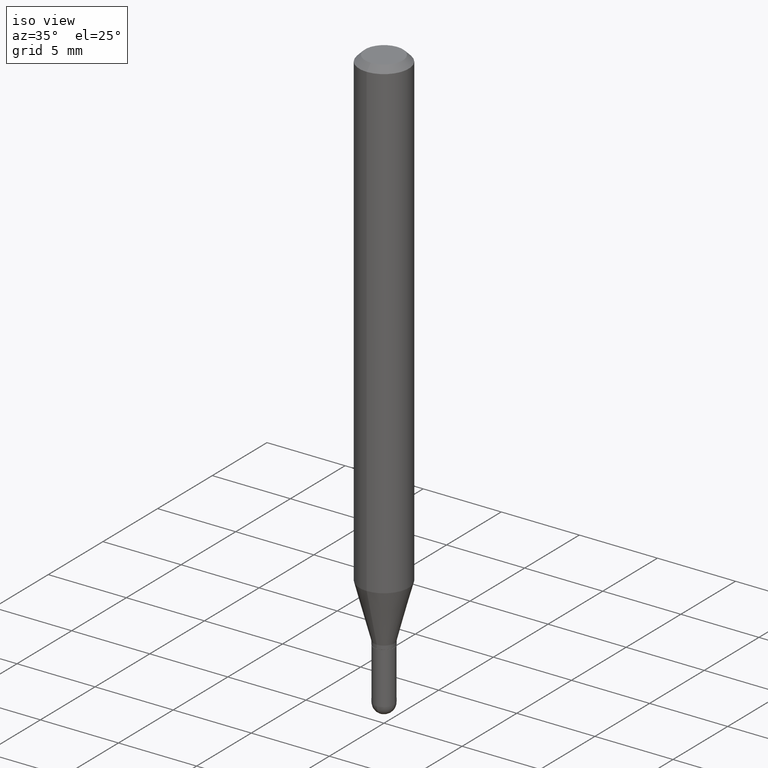
[diagram: clean part render]
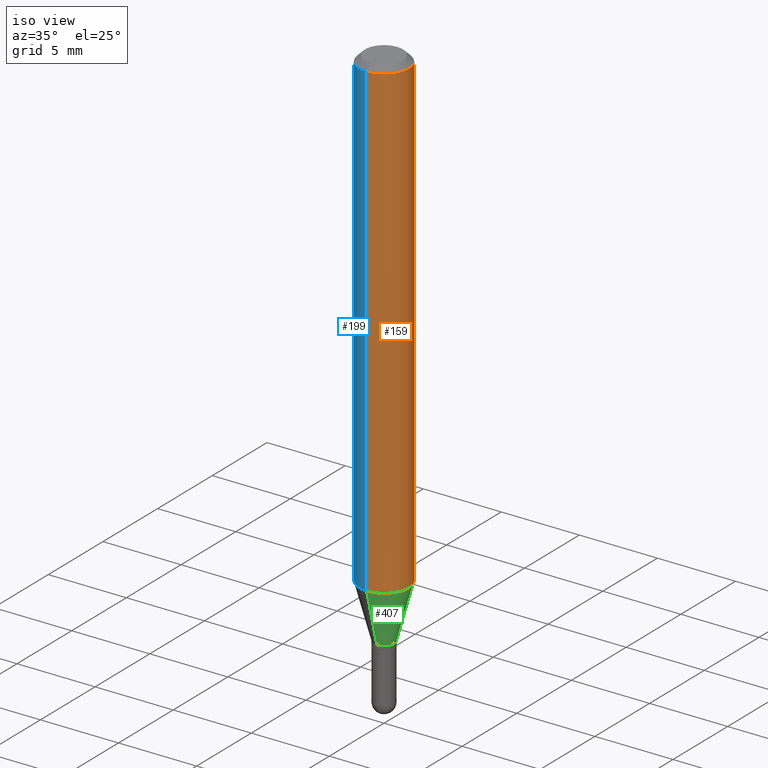
[diagram: same view with three faces highlighted in distinct colors, each labeled with its STEP entity id]
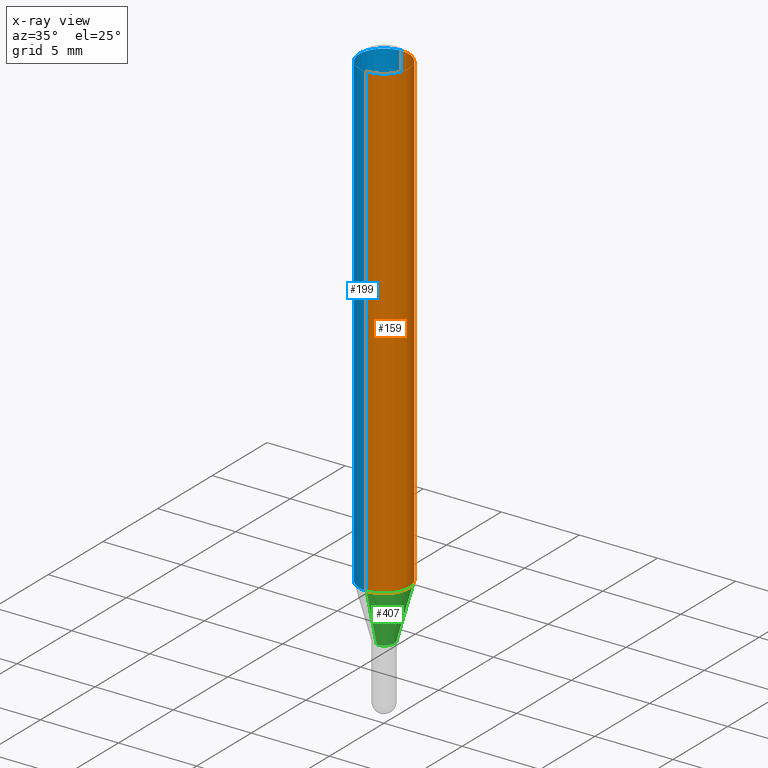
[diagram: x-ray of the same camera — body ghosted, the three highlighted faces saturated]
A machine part, iso view with three faces highlighted in distinct colors.
The next image is the same camera in x-ray (body ghosted, the three faces saturated) — at least one of them is partly hidden behind the body in this view.
Their STEP definitions:

[orange] entity #159 — the highlighted cylindrical surface (edge-blend (fillet) strip) has radius 1.5875 mm, axis along (-0, 0, 1).
#5 = CIRCLE ( 'NONE', #411, 0.06250000000000000000 ) ;
#7 = CARTESIAN_POINT ( 'NONE',  ( 3.668183042626222503E-31, -5.237250888057462898E-17, -0.01500000000000000812 ) ) ;
#26 = CARTESIAN_POINT ( 'NONE',  ( 4.440892098500625669E-16, 0.06250000000000000000, -2.182187870023941539E-16 ) ) ;
#28 = CARTESIAN_POINT ( 'NONE',  ( 4.440892098500920998E-16, 0.06249999999999995143, -0.01500000000000022669 ) ) ;
#38 = VERTEX_POINT ( 'NONE', #330 ) ;
#64 = VECTOR ( 'NONE', #168, 39.37007874015748143 ) ;
#65 = CARTESIAN_POINT ( 'NONE',  ( 0.000000000000000000, 0.000000000000000000, 0.000000000000000000 ) ) ;
#105 = AXIS2_PLACEMENT_3D ( 'NONE', #7, #372, #448 ) ;
#113 = EDGE_CURVE ( 'NONE', #371, #38, #5, .T. ) ;
#128 = VERTEX_POINT ( 'NONE', #139 ) ;
#139 = CARTESIAN_POINT ( 'NONE',  ( -4.364351673553912750E-16, -0.06250000000000005551, -0.01499999999999979128 ) ) ;
#149 = CARTESIAN_POINT ( 'NONE',  ( -4.364351673553624816E-16, -0.06250000000000420497, -1.197780145523736017 ) ) ;
#159 = ADVANCED_FACE ( 'NONE', ( #166 ), #332, .T. ) ;
#161 = ORIENTED_EDGE ( 'NONE', *, *, #284, .T. ) ;
#166 = FACE_OUTER_BOUND ( 'NONE', #483, .T. ) ;
#168 = DIRECTION ( 'NONE',  ( -2.445455361750813344E-29, 3.491500592038306462E-15, 1.000000000000000000 ) ) ;
#211 = DIRECTION ( 'NONE',  ( -6.982962677686265922E-15, -1.000000000000000000, 4.370956789862821150E-15 ) ) ;
#284 = EDGE_CURVE ( 'NONE', #38, #367, #492, .T. ) ;
#288 = ORIENTED_EDGE ( 'NONE', *, *, #459, .F. ) ;
#290 = AXIS2_PLACEMENT_3D ( 'NONE', #65, #352, #495 ) ;
#330 = CARTESIAN_POINT ( 'NONE',  ( 4.440892098500917054E-16, 0.06249999999999580197, -1.197780145523736683 ) ) ;
#332 = CYLINDRICAL_SURFACE ( 'NONE', #290, 0.06250000000000000000 ) ;
#352 = DIRECTION ( 'NONE',  ( -2.445455361750813344E-29, 3.491500592038306462E-15, 1.000000000000000000 ) ) ;
#360 = ORIENTED_EDGE ( 'NONE', *, *, #113, .T. ) ;
#367 = VERTEX_POINT ( 'NONE', #28 ) ;
#371 = VERTEX_POINT ( 'NONE', #149 ) ;
#372 = DIRECTION ( 'NONE',  ( -2.445455361750813344E-29, 3.491500592038306462E-15, 1.000000000000000000 ) ) ;
#379 = CIRCLE ( 'NONE', #105, 0.06250000000000000000 ) ;
#381 = CARTESIAN_POINT ( 'NONE',  ( -4.364351673553916201E-16, -0.06250000000000000000, 2.182187870023941539E-16 ) ) ;
#411 = AXIS2_PLACEMENT_3D ( 'NONE', #479, #471, #211 ) ;
#438 = LINE ( 'NONE', #381, #64 ) ;
#448 = DIRECTION ( 'NONE',  ( -6.982962677686265922E-15, -1.000000000000000000, 3.483106191921935554E-15 ) ) ;
#454 = DIRECTION ( 'NONE',  ( -2.445455361750813344E-29, 3.491500592038306462E-15, 1.000000000000000000 ) ) ;
#459 = EDGE_CURVE ( 'NONE', #128, #367, #379, .T. ) ;
#463 = EDGE_CURVE ( 'NONE', #371, #128, #438, .T. ) ;
#466 = ORIENTED_EDGE ( 'NONE', *, *, #463, .F. ) ;
#471 = DIRECTION ( 'NONE',  ( -2.445455361750813344E-29, 3.491500592038306462E-15, 1.000000000000000000 ) ) ;
#479 = CARTESIAN_POINT ( 'NONE',  ( 2.929117879069690372E-29, -4.182050087227853804E-15, -1.197780145523736239 ) ) ;
#483 = EDGE_LOOP ( 'NONE', ( #360, #161, #288, #466 ) ) ;
#492 = LINE ( 'NONE', #26, #499 ) ;
#495 = DIRECTION ( 'NONE',  ( -6.982962677686265922E-15, -1.000000000000000000, 3.491500592038306462E-15 ) ) ;
#499 = VECTOR ( 'NONE', #454, 39.37007874015748143 ) ;

[blue] entity #199 — the highlighted cylindrical surface (edge-blend (fillet) strip) has radius 1.5875 mm, axis along (-0, 0, 1).
#26 = CARTESIAN_POINT ( 'NONE',  ( 4.440892098500625669E-16, 0.06250000000000000000, -2.182187870023941539E-16 ) ) ;
#27 = DIRECTION ( 'NONE',  ( -2.445455361750813344E-29, 3.491500592038306462E-15, 1.000000000000000000 ) ) ;
#28 = CARTESIAN_POINT ( 'NONE',  ( 4.440892098500920998E-16, 0.06249999999999995143, -0.01500000000000022669 ) ) ;
#38 = VERTEX_POINT ( 'NONE', #330 ) ;
#42 = ORIENTED_EDGE ( 'NONE', *, *, #463, .T. ) ;
#61 = EDGE_CURVE ( 'NONE', #38, #371, #507, .T. ) ;
#64 = VECTOR ( 'NONE', #168, 39.37007874015748143 ) ;
#103 = CARTESIAN_POINT ( 'NONE',  ( 2.929117879069690372E-29, -4.182050087227853804E-15, -1.197780145523736239 ) ) ;
#128 = VERTEX_POINT ( 'NONE', #139 ) ;
#139 = CARTESIAN_POINT ( 'NONE',  ( -4.364351673553912750E-16, -0.06250000000000005551, -0.01499999999999979128 ) ) ;
#149 = CARTESIAN_POINT ( 'NONE',  ( -4.364351673553624816E-16, -0.06250000000000420497, -1.197780145523736017 ) ) ;
#163 = CIRCLE ( 'NONE', #369, 0.06250000000000000000 ) ;
#168 = DIRECTION ( 'NONE',  ( -2.445455361750813344E-29, 3.491500592038306462E-15, 1.000000000000000000 ) ) ;
#170 = ORIENTED_EDGE ( 'NONE', *, *, #443, .F. ) ;
#172 = DIRECTION ( 'NONE',  ( -2.445455361750813344E-29, 3.491500592038306462E-15, 1.000000000000000000 ) ) ;
#181 = AXIS2_PLACEMENT_3D ( 'NONE', #103, #262, #346 ) ;
#199 = ADVANCED_FACE ( 'NONE', ( #393 ), #202, .T. ) ;
#202 = CYLINDRICAL_SURFACE ( 'NONE', #227, 0.06250000000000000000 ) ;
#227 = AXIS2_PLACEMENT_3D ( 'NONE', #314, #27, #275 ) ;
#262 = DIRECTION ( 'NONE',  ( -2.445455361750813344E-29, 3.491500592038306462E-15, 1.000000000000000000 ) ) ;
#275 = DIRECTION ( 'NONE',  ( -6.982962677686265922E-15, -1.000000000000000000, 3.491500592038306462E-15 ) ) ;
#284 = EDGE_CURVE ( 'NONE', #38, #367, #492, .T. ) ;
#287 = DIRECTION ( 'NONE',  ( -6.982962677686265922E-15, -1.000000000000000000, 3.483106191921935554E-15 ) ) ;
#314 = CARTESIAN_POINT ( 'NONE',  ( 0.000000000000000000, 0.000000000000000000, 0.000000000000000000 ) ) ;
#330 = CARTESIAN_POINT ( 'NONE',  ( 4.440892098500917054E-16, 0.06249999999999580197, -1.197780145523736683 ) ) ;
#346 = DIRECTION ( 'NONE',  ( -6.982962677686265922E-15, -1.000000000000000000, 4.370956789862821150E-15 ) ) ;
#355 = ORIENTED_EDGE ( 'NONE', *, *, #61, .T. ) ;
#367 = VERTEX_POINT ( 'NONE', #28 ) ;
#369 = AXIS2_PLACEMENT_3D ( 'NONE', #475, #172, #287 ) ;
#371 = VERTEX_POINT ( 'NONE', #149 ) ;
#381 = CARTESIAN_POINT ( 'NONE',  ( -4.364351673553916201E-16, -0.06250000000000000000, 2.182187870023941539E-16 ) ) ;
#393 = FACE_OUTER_BOUND ( 'NONE', #430, .T. ) ;
#430 = EDGE_LOOP ( 'NONE', ( #442, #355, #42, #170 ) ) ;
#438 = LINE ( 'NONE', #381, #64 ) ;
#442 = ORIENTED_EDGE ( 'NONE', *, *, #284, .F. ) ;
#443 = EDGE_CURVE ( 'NONE', #367, #128, #163, .T. ) ;
#454 = DIRECTION ( 'NONE',  ( -2.445455361750813344E-29, 3.491500592038306462E-15, 1.000000000000000000 ) ) ;
#463 = EDGE_CURVE ( 'NONE', #371, #128, #438, .T. ) ;
#475 = CARTESIAN_POINT ( 'NONE',  ( 3.668183042626222503E-31, -5.237250888057462898E-17, -0.01500000000000000812 ) ) ;
#492 = LINE ( 'NONE', #26, #499 ) ;
#499 = VECTOR ( 'NONE', #454, 39.37007874015748143 ) ;
#507 = CIRCLE ( 'NONE', #181, 0.06250000000000000000 ) ;

[green] entity #407 — the highlighted conical surface has half-angle 15 deg.
#5 = CIRCLE ( 'NONE', #411, 0.06250000000000000000 ) ;
#25 = ORIENTED_EDGE ( 'NONE', *, *, #395, .F. ) ;
#29 = EDGE_CURVE ( 'NONE', #204, #152, #122, .T. ) ;
#30 = CARTESIAN_POINT ( 'NONE',  ( -1.815570296198097471E-16, -0.02600000000000458195, -1.334000000000000075 ) ) ;
#38 = VERTEX_POINT ( 'NONE', #330 ) ;
#41 = CARTESIAN_POINT ( 'NONE',  ( 3.262237452575584502E-29, -4.657661789779100517E-15, -1.334000000000000075 ) ) ;
#46 = DIRECTION ( 'NONE',  ( -6.982962677686266711E-15, -1.000000000000000000, 0.000000000000000000 ) ) ;
#55 = DIRECTION ( 'NONE',  ( 1.839019923739601893E-15, 0.2588190451025252359, 0.9659258262890670910 ) ) ;
#72 = AXIS2_PLACEMENT_3D ( 'NONE', #41, #403, #130 ) ;
#93 = DIRECTION ( 'NONE',  ( -2.445455361750813344E-29, 3.491500592038306462E-15, 1.000000000000000000 ) ) ;
#113 = EDGE_CURVE ( 'NONE', #371, #38, #5, .T. ) ;
#122 = CIRCLE ( 'NONE', #235, 0.02599999999999992248 ) ;
#130 = DIRECTION ( 'NONE',  ( -6.982962677686266711E-15, -1.000000000000000000, 0.000000000000000000 ) ) ;
#143 = EDGE_CURVE ( 'NONE', #152, #38, #206, .T. ) ;
#149 = CARTESIAN_POINT ( 'NONE',  ( -4.364351673553624816E-16, -0.06250000000000420497, -1.197780145523736017 ) ) ;
#152 = VERTEX_POINT ( 'NONE', #179 ) ;
#178 = FACE_OUTER_BOUND ( 'NONE', #203, .T. ) ;
#179 = CARTESIAN_POINT ( 'NONE',  ( 3.144151605738750813E-16, 0.02599999999999526648, -1.334000000000000075 ) ) ;
#203 = EDGE_LOOP ( 'NONE', ( #291, #437, #435, #25 ) ) ;
#204 = VERTEX_POINT ( 'NONE', #318 ) ;
#206 = LINE ( 'NONE', #296, #353 ) ;
#211 = DIRECTION ( 'NONE',  ( -6.982962677686265922E-15, -1.000000000000000000, 4.370956789862821150E-15 ) ) ;
#235 = AXIS2_PLACEMENT_3D ( 'NONE', #340, #93, #46 ) ;
#244 = LINE ( 'NONE', #30, #354 ) ;
#291 = ORIENTED_EDGE ( 'NONE', *, *, #29, .T. ) ;
#296 = CARTESIAN_POINT ( 'NONE',  ( 1.847411112976581120E-16, 0.02599999999999526648, -1.334000000000000075 ) ) ;
#303 = CONICAL_SURFACE ( 'NONE', #72, 0.02599999999999992248, 0.2617993877991505181 ) ;
#318 = CARTESIAN_POINT ( 'NONE',  ( -1.815570296198097471E-16, -0.02600000000000458195, -1.334000000000000075 ) ) ;
#330 = CARTESIAN_POINT ( 'NONE',  ( 4.440892098500917054E-16, 0.06249999999999580197, -1.197780145523736683 ) ) ;
#340 = CARTESIAN_POINT ( 'NONE',  ( 3.262237452575584502E-29, -4.657661789779100517E-15, -1.334000000000000075 ) ) ;
#353 = VECTOR ( 'NONE', #55, 39.37007874015748854 ) ;
#354 = VECTOR ( 'NONE', #504, 39.37007874015748854 ) ;
#371 = VERTEX_POINT ( 'NONE', #149 ) ;
#395 = EDGE_CURVE ( 'NONE', #204, #371, #244, .T. ) ;
#403 = DIRECTION ( 'NONE',  ( -2.445455361750813344E-29, 3.491500592038306462E-15, 1.000000000000000000 ) ) ;
#407 = ADVANCED_FACE ( 'NONE', ( #178 ), #303, .T. ) ;
#411 = AXIS2_PLACEMENT_3D ( 'NONE', #479, #471, #211 ) ;
#435 = ORIENTED_EDGE ( 'NONE', *, *, #113, .F. ) ;
#437 = ORIENTED_EDGE ( 'NONE', *, *, #143, .T. ) ;
#471 = DIRECTION ( 'NONE',  ( -2.445455361750813344E-29, 3.491500592038306462E-15, 1.000000000000000000 ) ) ;
#479 = CARTESIAN_POINT ( 'NONE',  ( 2.929117879069690372E-29, -4.182050087227853804E-15, -1.197780145523736239 ) ) ;
#504 = DIRECTION ( 'NONE',  ( -1.807323732225331717E-15, -0.2588190451025184080, 0.9659258262890689783 ) ) ;